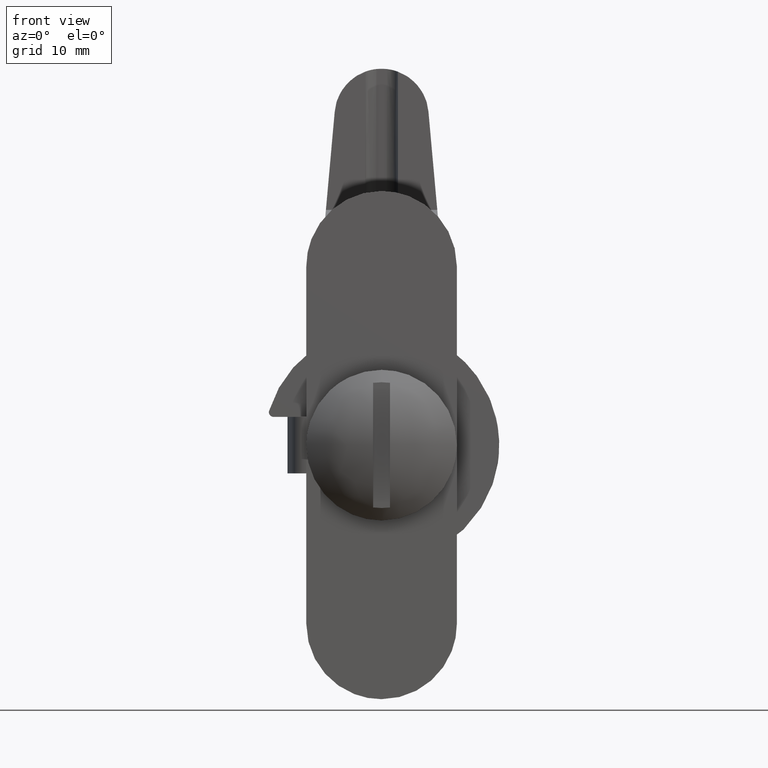
[diagram: clean part render]
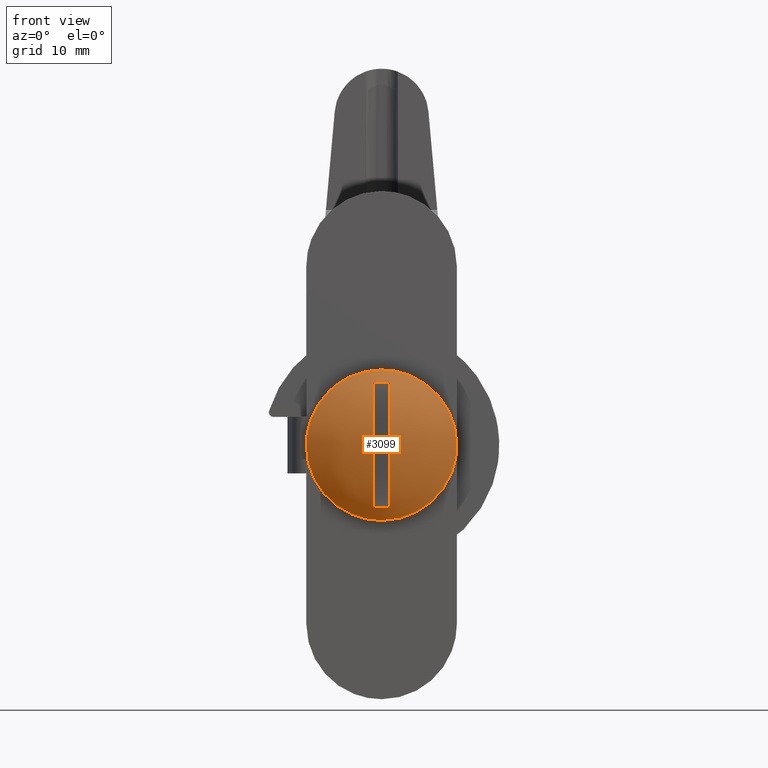
[diagram: same view with one face highlighted and labeled with its STEP entity id]
A machine part, front view. The second image highlights one B-rep face of the part: STEP entity #3099.
In plain terms, the highlighted face is a freeform B-spline surface patch.
Its self-contained STEP definition (entity closure, byte-faithful):
#2079=CARTESIAN_POINT('',(-5.506836424574816,-4.600003109090910,5.802994818106997));
#2080=VERTEX_POINT('',#2079);
#2086=CARTESIAN_POINT('',(0.0,-4.600003109090910,8.0));
#2087=VERTEX_POINT('',#2086);
#2088=CARTESIAN_POINT('',(0.0,-4.600003109090910,8.0));
#2089=CARTESIAN_POINT('',(-0.664340787868855,-4.600003109090896,8.000173980071752));
#2090=CARTESIAN_POINT('',(-1.708150199132720,-4.600003109090936,7.869165854150231));
#2091=CARTESIAN_POINT('',(-3.213261657173157,-4.600003109090878,7.369930552912590));
#2092=CARTESIAN_POINT('',(-4.418067550173086,-4.600003109090975,6.723699551348926));
#2093=CARTESIAN_POINT('',(-5.185604123270579,-4.600003109090848,6.107870218703368));
#2094=CARTESIAN_POINT('',(-5.506836424574816,-4.600003109090910,5.802994818106997));
#2095=B_SPLINE_CURVE_WITH_KNOTS('',3,(#2088,#2089,#2090,#2091,#2092,#2093,#2094),.UNSPECIFIED.,.F.,.U.,(4,1,1,1,4),(4.487261E-009,1.992963552568845,3.131792106578998,4.745143439710319,6.073781292254526),.UNSPECIFIED.);
#2096=EDGE_CURVE('',#2087,#2080,#2095,.T.);
#2098=CARTESIAN_POINT('',(7.999999999999945,-4.600003109090910,0.000000934780666));
#2099=VERTEX_POINT('',#2098);
#2100=CARTESIAN_POINT('',(7.999999999999945,-4.600003109090910,0.000000934780666));
#2101=CARTESIAN_POINT('',(8.000234716182492,-4.600003109090922,0.719978855446396));
#2102=CARTESIAN_POINT('',(7.857679193133628,-4.600003109090899,1.767042350160827));
#2103=CARTESIAN_POINT('',(7.430918982137636,-4.600003109090918,3.007151445426896));
#2104=CARTESIAN_POINT('',(6.996681704432638,-4.600003109090907,3.925344798237062));
#2105=CARTESIAN_POINT('',(6.376043362362593,-4.600003109090913,4.892325231952244));
#2106=CARTESIAN_POINT('',(5.559883872655463,-4.600003109090901,5.792779361104223));
#2107=CARTESIAN_POINT('',(4.647482928297960,-4.600003109090888,6.541558610352976));
#2108=CARTESIAN_POINT('',(3.753523525346660,-4.600003109091009,7.092395316852633));
#2109=CARTESIAN_POINT('',(2.764381072319607,-4.600003109090823,7.530846673113516));
#2110=CARTESIAN_POINT('',(1.538026161375093,-4.600003109090980,7.894683580844566));
#2111=CARTESIAN_POINT('',(0.589057611062052,-4.600003109090886,8.000113859562209));
#2112=CARTESIAN_POINT('',(0.0,-4.600003109090910,8.0));
#2113=B_SPLINE_CURVE_WITH_KNOTS('',3,(#2100,#2101,#2102,#2103,#2104,#2105,#2106,#2107,#2108,#2109,#2110,#2111,#2112),.UNSPECIFIED.,.F.,.U.,(4,1,1,1,1,1,1,1,1,1,4),(0.000000014660955,2.159856701893423,3.141612291736200,3.927020058563697,5.203307646623443,6.577744023363900,7.559494920835516,8.737606926222838,9.719363274225030,10.799298675746710,12.566448936139819),.UNSPECIFIED.);
#2114=EDGE_CURVE('',#2099,#2087,#2113,.T.);
#2116=CARTESIAN_POINT('',(0.0,-4.600003109090910,-8.0));
#2117=VERTEX_POINT('',#2116);
#2118=CARTESIAN_POINT('',(0.0,-4.600003109090910,-8.0));
#2119=CARTESIAN_POINT('',(0.654521341029313,-4.600003109090919,-8.000183500427276));
#2120=CARTESIAN_POINT('',(1.701610060566267,-4.600003109090912,-7.870703910740964));
#2121=CARTESIAN_POINT('',(3.228364826212865,-4.600003109090912,-7.366374497941989));
#2122=CARTESIAN_POINT('',(4.587764669433256,-4.600003109090893,-6.629107056393727));
#2123=CARTESIAN_POINT('',(5.709620244845245,-4.600003109090943,-5.661298167880840));
#2124=CARTESIAN_POINT('',(6.541546585571595,-4.600003109090860,-4.647473514601197));
#2125=CARTESIAN_POINT('',(7.161277487253356,-4.600003109090999,-3.641788959222391));
#2126=CARTESIAN_POINT('',(7.601197885240835,-4.600003109090912,-2.579687148577372));
#2127=CARTESIAN_POINT('',(7.919382783404878,-4.600003109090847,-1.341694069565572));
#2128=CARTESIAN_POINT('',(8.000064569074391,-4.600003109090999,-0.523600492608972));
#2129=CARTESIAN_POINT('',(7.999999999999945,-4.600003109090910,0.000000934780666));
#2130=B_SPLINE_CURVE_WITH_KNOTS('',3,(#2118,#2119,#2120,#2121,#2122,#2123,#2124,#2125,#2126,#2127,#2128,#2129),.UNSPECIFIED.,.F.,.U.,(4,1,1,1,1,1,1,1,1,4),(0.000000014333802,1.963506124077600,3.141612554911834,4.810604985470525,6.577744575702952,7.559495555218181,8.737607659084929,10.112067330861221,10.995651651152510,12.566449989862130),.UNSPECIFIED.);
#2131=EDGE_CURVE('',#2117,#2099,#2130,.T.);
#2133=CARTESIAN_POINT('',(-6.108445293712618,-4.600003109090910,-5.165936486344416));
#2134=VERTEX_POINT('',#2133);
#2135=CARTESIAN_POINT('',(-6.108445293712618,-4.600003109090910,-5.165936486344416));
#2136=CARTESIAN_POINT('',(-5.769548525589231,-4.600003109090910,-5.566781602168572));
#2137=CARTESIAN_POINT('',(-5.155996802249990,-4.600003109090914,-6.161988202735715));
#2138=CARTESIAN_POINT('',(-4.012241669631443,-4.600003109090916,-6.962937313576963));
#2139=CARTESIAN_POINT('',(-2.815149802372674,-4.600003109090894,-7.538237761458114));
#2140=CARTESIAN_POINT('',(-1.393690140077198,-4.600003109090925,-7.918311787379229));
#2141=CARTESIAN_POINT('',(-0.470602397048436,-4.600003109090914,-8.000041696481453));
#2142=CARTESIAN_POINT('',(0.0,-4.600003109090910,-8.0));
#2143=B_SPLINE_CURVE_WITH_KNOTS('',3,(#2135,#2136,#2137,#2138,#2139,#2140,#2141,#2142),.UNSPECIFIED.,.F.,.U.,(4,1,1,1,1,4),(0.000000015933824,1.574705137568971,2.552116503940197,4.181111283611143,5.538623167269410,6.950426384254825),.UNSPECIFIED.);
#2144=EDGE_CURVE('',#2134,#2117,#2143,.T.);
#2180=CARTESIAN_POINT('',(-7.999999999999945,-4.600003109090910,-0.000000934780917));
#2181=VERTEX_POINT('',#2180);
#2182=CARTESIAN_POINT('',(-7.999999999999945,-4.600003109090910,-0.000000934780917));
#2183=CARTESIAN_POINT('',(-8.000126321174790,-4.600003109090921,-0.614259760273333));
#2184=CARTESIAN_POINT('',(-7.881484121813145,-4.600003109090881,-1.637930081927657));
#2185=CARTESIAN_POINT('',(-7.446897773296174,-4.600003109090950,-3.008144890421948));
#2186=CARTESIAN_POINT('',(-6.886083218911454,-4.600003109090819,-4.138074715109961));
#2187=CARTESIAN_POINT('',(-6.391790822923169,-4.600003109091049,-4.830950610170918));
#2188=CARTESIAN_POINT('',(-6.108445293712618,-4.600003109090910,-5.165936486344416));
#2189=B_SPLINE_CURVE_WITH_KNOTS('',3,(#2182,#2183,#2184,#2185,#2186,#2187,#2188),.UNSPECIFIED.,.F.,.U.,(4,1,1,1,4),(6.759600E-009,1.842745435937583,3.071233440212743,4.299739329379376,5.615984969506991),.UNSPECIFIED.);
#2190=EDGE_CURVE('',#2181,#2134,#2189,.T.);
#2192=CARTESIAN_POINT('',(-5.506836424574816,-4.600003109090910,5.802994818106997));
#2193=CARTESIAN_POINT('',(-5.788932696826483,-4.600003109090913,5.535319181403480));
#2194=CARTESIAN_POINT('',(-6.313958766154581,-4.600003109090906,4.958710329851412));
#2195=CARTESIAN_POINT('',(-7.090774652071509,-4.600003109090919,3.805843906682501));
#2196=CARTESIAN_POINT('',(-7.601302295087086,-4.600003109090908,2.617506796773598));
#2197=CARTESIAN_POINT('',(-7.928247574872974,-4.600003109090913,1.268069560539864));
#2198=CARTESIAN_POINT('',(-8.000051676690285,-4.600003109090922,0.490331916075539));
#2199=CARTESIAN_POINT('',(-7.999999999999945,-4.600003109090910,-0.000000934780917));
#2200=B_SPLINE_CURVE_WITH_KNOTS('',3,(#2192,#2193,#2194,#2195,#2196,#2197,#2198,#2199),.UNSPECIFIED.,.F.,.U.,(4,1,1,1,1,4),(0.000000012835087,1.166643611239861,2.333296864433430,4.159339709275290,5.021648876217720,6.492636560882932),.UNSPECIFIED.);
#2201=EDGE_CURVE('',#2080,#2181,#2200,.T.);
#2927=CARTESIAN_POINT('',(-0.899994000000000,-5.600000000000000,-6.622442132624241));
#2928=VERTEX_POINT('',#2927);
#2929=CARTESIAN_POINT('',(0.900001000000000,-5.600000000000000,-6.622441181316130));
#2930=VERTEX_POINT('',#2929);
#2931=CARTESIAN_POINT('',(-0.899994000000000,-5.600000000000000,-6.622442132624241));
#2932=CARTESIAN_POINT('',(-0.303651934880373,-5.600000000000015,-6.703575380263064));
#2933=CARTESIAN_POINT('',(0.303659589581024,-5.599999999999987,-6.703637239905915));
#2934=CARTESIAN_POINT('',(0.900001000000000,-5.600000000000000,-6.622441181316130));
#2935=B_SPLINE_CURVE_WITH_KNOTS('',3,(#2931,#2932,#2933,#2934),.UNSPECIFIED.,.F.,.U.,(4,4),(1.812858E-009,1.805485486613517),.UNSPECIFIED.);
#2936=EDGE_CURVE('',#2928,#2930,#2935,.T.);
#2938=CARTESIAN_POINT('',(0.900001000000000,-5.600000000000000,6.622441181316130));
#2939=VERTEX_POINT('',#2938);
#2945=CARTESIAN_POINT('',(-0.899994000000000,-5.600000000000000,6.622442132624251));
#2946=VERTEX_POINT('',#2945);
#2947=CARTESIAN_POINT('',(0.900001000000000,-5.600000000000000,6.622441181316130));
#2948=CARTESIAN_POINT('',(0.303658839038322,-5.600000000000000,6.703645555321249));
#2949=CARTESIAN_POINT('',(-0.303651423481160,-5.600000000000001,6.703570169457845));
#2950=CARTESIAN_POINT('',(-0.899994000000000,-5.600000000000000,6.622442132624251));
#2951=B_SPLINE_CURVE_WITH_KNOTS('',3,(#2947,#2948,#2949,#2950),.UNSPECIFIED.,.F.,.U.,(4,4),(1.812866E-009,1.805485486613516),.UNSPECIFIED.);
#2952=EDGE_CURVE('',#2939,#2946,#2951,.T.);
#2967=CARTESIAN_POINT('',(-0.899994000000000,-5.600000000000000,6.622442132624251));
#2968=CARTESIAN_POINT('',(-0.899994000000001,-6.018254350379626,5.980476910321755));
#2969=CARTESIAN_POINT('',(-0.899994000000000,-6.715543066172808,4.649445097163429));
#2970=CARTESIAN_POINT('',(-0.899993999999998,-7.328048642134084,2.653149056700934));
#2971=CARTESIAN_POINT('',(-0.899994000000003,-7.574717928845331,0.840836900655905));
#2972=CARTESIAN_POINT('',(-0.899993999999999,-7.574761773534225,-0.950516663308888));
#2973=CARTESIAN_POINT('',(-0.899994000000004,-7.308661069991791,-2.725019437246265));
#2974=CARTESIAN_POINT('',(-0.899993999999989,-6.679097485103436,-4.712803311787499));
#2975=CARTESIAN_POINT('',(-0.899994000000021,-6.038198667132273,-5.949921725081990));
#2976=CARTESIAN_POINT('',(-0.899994000000000,-5.600000000000000,-6.622442132624241));
#2977=B_SPLINE_CURVE_WITH_KNOTS('',3,(#2967,#2968,#2969,#2970,#2971,#2972,#2973,#2974,#2975,#2976),.UNSPECIFIED.,.F.,.U.,(4,1,1,1,1,1,1,4),(0.000000012764710,2.298581961606805,4.487711817287060,6.239029604391349,7.771386133793533,9.851069382985124,11.602375579943230,14.010415532623300),.UNSPECIFIED.);
#2978=EDGE_CURVE('',#2946,#2928,#2977,.T.);
#2989=CARTESIAN_POINT('',(0.900001000000000,-5.600000000000000,-6.622441181316130));
#2990=CARTESIAN_POINT('',(0.900001000000001,-5.978421212132855,-6.041615042029401));
#2991=CARTESIAN_POINT('',(0.900000999999998,-6.496939679854166,-5.073106777389647));
#2992=CARTESIAN_POINT('',(0.900001000000002,-7.044885165930906,-3.600972358156478));
#2993=CARTESIAN_POINT('',(0.900001000000001,-7.439822269422151,-2.042096601225517));
#2994=CARTESIAN_POINT('',(0.900000999999997,-7.621294691013188,-0.219412698408669));
#2995=CARTESIAN_POINT('',(0.900001000000009,-7.500011460874612,1.569524367308465));
#2996=CARTESIAN_POINT('',(0.900000999999995,-7.190218756058217,3.109848314775246));
#2997=CARTESIAN_POINT('',(0.900001000000005,-6.645363708024819,4.777916399895381));
#2998=CARTESIAN_POINT('',(0.900001000000000,-6.038195227502366,5.949917060768419));
#2999=CARTESIAN_POINT('',(0.900001000000000,-5.600000000000000,6.622441181316130));
#3000=B_SPLINE_CURVE_WITH_KNOTS('',3,(#2989,#2990,#2991,#2992,#2993,#2994,#2995,#2996,#2997,#2998,#2999),.UNSPECIFIED.,.F.,.U.,(4,1,1,1,1,1,1,1,4),(0.000000012764419,2.079667214587429,3.283690439315752,4.706627523475325,6.895756268931470,8.756497577039824,10.069981977637999,11.602373763205049,14.010413338826069),.UNSPECIFIED.);
#3001=EDGE_CURVE('',#2930,#2939,#3000,.T.);
#3061=CARTESIAN_POINT('',(-7.488590066974214,-1.422478134439525,-7.488590066974251));
#3062=CARTESIAN_POINT('',(-4.288680586289917,-4.062163336550851,-8.577361172579964));
#3063=CARTESIAN_POINT('',(4.288680861823694,-4.062163336550784,-8.577361172579964));
#3064=CARTESIAN_POINT('',(7.488590425949927,-1.422477838311439,-7.488589944832573));
#3065=CARTESIAN_POINT('',(-8.577361172579906,-4.062163336550881,-4.288680586289975));
#3066=CARTESIAN_POINT('',(-5.018293647489077,-7.600003000000044,-5.018293647489158));
#3067=CARTESIAN_POINT('',(5.018293969898152,-7.600002999999965,-5.018293647489158));
#3068=CARTESIAN_POINT('',(8.577361563407225,-4.062162948054610,-4.288680506169933));
#3069=CARTESIAN_POINT('',(-8.577361172579906,-4.062163336550871,4.288680861823635));
#3070=CARTESIAN_POINT('',(-5.018293647489077,-7.600003000000031,5.018293969898069));
#3071=CARTESIAN_POINT('',(5.018293969898152,-7.600002999999951,5.018293969898069));
#3072=CARTESIAN_POINT('',(8.577361563407225,-4.062162948054598,4.288680781703588));
#3073=CARTESIAN_POINT('',(-7.488589944832536,-1.422477838311541,7.488590425949891));
#3074=CARTESIAN_POINT('',(-4.288680506169875,-4.062162948054693,8.577361563407166));
#3075=CARTESIAN_POINT('',(4.288680781703645,-4.062162948054627,8.577361563407166));
#3076=CARTESIAN_POINT('',(7.488590303808238,-1.422477542183464,7.488590303808208));
#3084=(BOUNDED_SURFACE()B_SPLINE_SURFACE(2,2,((#3061,#3065,#3069,#3073),(#3062,#3066,#3070,#3074),(#3063,#3067,#3071,#3075),(#3064,#3068,#3072,#3076)),.UNSPECIFIED.,.F.,.F.,.U.)B_SPLINE_SURFACE_WITH_KNOTS((3,1,3),(3,1,3),(0.0,9.249776781019451,18.499554156306662),(0.0,9.249776781019452,18.499554156306669),.UNSPECIFIED.)GEOMETRIC_REPRESENTATION_ITEM()RATIONAL_B_SPLINE_SURFACE(((1.340250595267742,1.170125297633871,1.170125297633871,1.340250617127726),(1.170125297633871,1.0,1.0,1.170125319493855),(1.170125297633871,1.0,1.0,1.170125319493855),(1.340250617127726,1.170125319493855,1.170125319493855,1.340250638987710)))REPRESENTATION_ITEM('')SURFACE());
#3085=ORIENTED_EDGE('',*,*,#2131,.T.);
#3086=ORIENTED_EDGE('',*,*,#2114,.T.);
#3087=ORIENTED_EDGE('',*,*,#2096,.T.);
#3088=ORIENTED_EDGE('',*,*,#2201,.T.);
#3089=ORIENTED_EDGE('',*,*,#2190,.T.);
#3090=ORIENTED_EDGE('',*,*,#2144,.T.);
#3091=EDGE_LOOP('',(#3085,#3086,#3087,#3088,#3089,#3090));
#3092=FACE_OUTER_BOUND('',#3091,.T.);
#3093=ORIENTED_EDGE('',*,*,#2936,.F.);
#3094=ORIENTED_EDGE('',*,*,#2978,.F.);
#3095=ORIENTED_EDGE('',*,*,#2952,.F.);
#3096=ORIENTED_EDGE('',*,*,#3001,.F.);
#3097=EDGE_LOOP('',(#3093,#3094,#3095,#3096));
#3098=FACE_BOUND('',#3097,.T.);
#3099=ADVANCED_FACE('',(#3092,#3098),#3084,.T.);